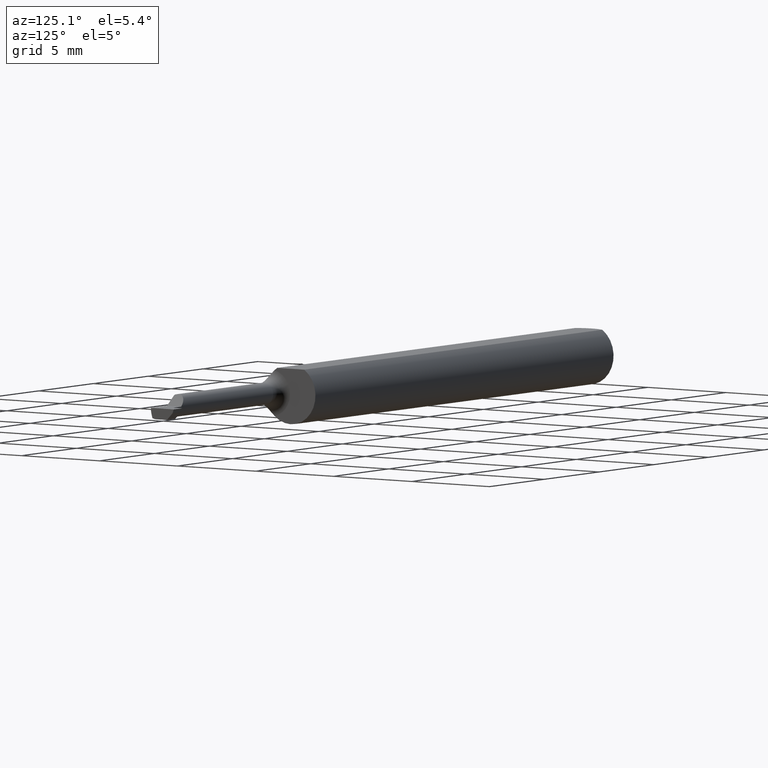
[diagram: clean part render]
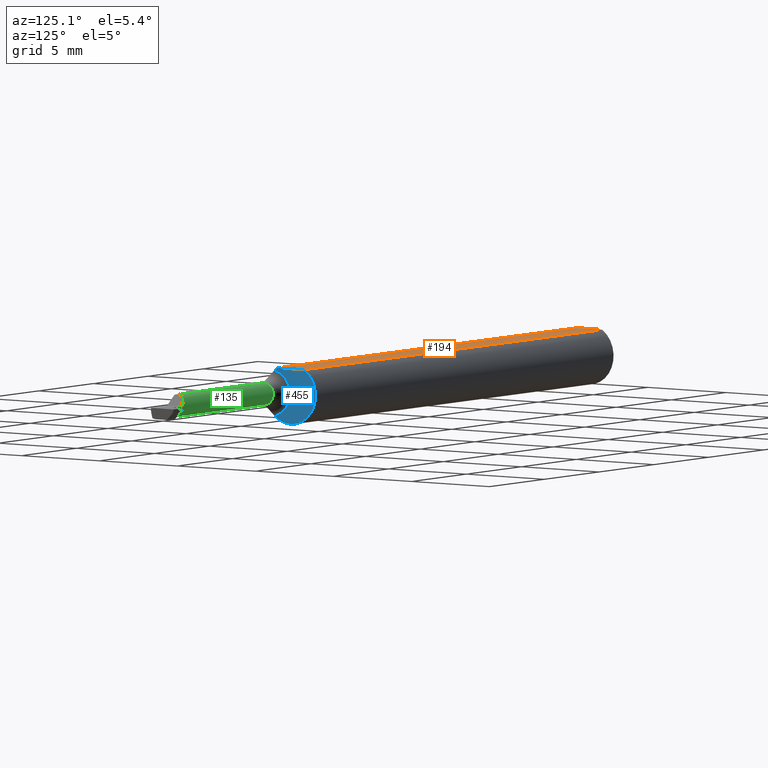
[diagram: same view with three faces highlighted in distinct colors, each labeled with its STEP entity id]
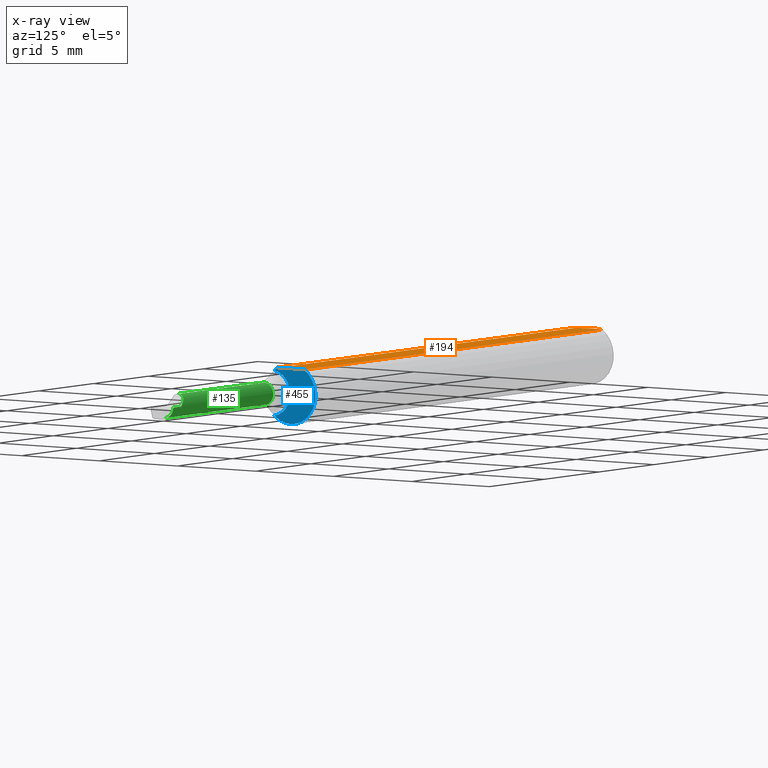
[diagram: x-ray of the same camera — body ghosted, the three highlighted faces saturated]
A machine part, auxiliary view with three faces highlighted in distinct colors.
The next image is the same camera in x-ray (body ghosted, the three faces saturated) — at least one of them is partly hidden behind the body in this view.
Their STEP definitions:

[orange] entity #194 — the highlighted planar face has unit normal (0, -0, 1).
#17 = CARTESIAN_POINT ( 'NONE',  ( 0.01499999999999999771, 0.03391164991562633374, 0.05250000000000000500 ) ) ;
#54 = DIRECTION ( 'NONE',  ( -0.000000000000000000, 1.000000000000000000, 0.000000000000000000 ) ) ;
#55 = CARTESIAN_POINT ( 'NONE',  ( 0.006056885874551373727, -0.01188654981375985957, 0.05250000000000001193 ) ) ;
#63 = B_SPLINE_CURVE_WITH_KNOTS ( 'NONE', 3,
 ( #17, #134, #561, #303, #461, #131 ),
 .UNSPECIFIED., .F., .F.,
 ( 4, 2, 4 ),
 ( 0.0009797930073890425730, 0.001428868798926340253, 0.001877944590463637717 ),
 .UNSPECIFIED. ) ;
#69 = CARTESIAN_POINT ( 'NONE',  ( 0.01216049014016022493, -0.02867836381244416935, 0.05250000000000000500 ) ) ;
#87 = VECTOR ( 'NONE', #698, 39.37007874015748143 ) ;
#95 = VECTOR ( 'NONE', #299, 39.37007874015748143 ) ;
#112 = EDGE_CURVE ( 'NONE', #253, #645, #365, .T. ) ;
#113 = CARTESIAN_POINT ( 'NONE',  ( 0.01499999999999999771, 0.03391164991562633374, 0.05250000000000000500 ) ) ;
#117 = VERTEX_POINT ( 'NONE', #615 ) ;
#126 = CARTESIAN_POINT ( 'NONE',  ( 0.000000000000000000, 0.03391164991562636150, 0.05249999999999998418 ) ) ;
#131 = CARTESIAN_POINT ( 'NONE',  ( 0.004999999999989314207, 8.235553591830799656E-16, 0.05250000000000000500 ) ) ;
#134 = CARTESIAN_POINT ( 'NONE',  ( 0.01218419045468773464, 0.02872204407162096823, 0.05250000000000001193 ) ) ;
#139 = CARTESIAN_POINT ( 'NONE',  ( 1.084999999999999964, 0.03391164991562636150, 0.05250000000000000500 ) ) ;
#194 = ADVANCED_FACE ( 'NONE', ( #342 ), #356, .T. ) ;
#228 = VERTEX_POINT ( 'NONE', #139 ) ;
#231 = CARTESIAN_POINT ( 'NONE',  ( 1.084999999999999964, -0.06250000000000001388, 0.05250000000000000500 ) ) ;
#233 = ORIENTED_EDGE ( 'NONE', *, *, #441, .T. ) ;
#252 = EDGE_CURVE ( 'NONE', #645, #117, #562, .T. ) ;
#253 = VERTEX_POINT ( 'NONE', #526 ) ;
#299 = DIRECTION ( 'NONE',  ( -1.000000000000000000, -0.000000000000000000, -0.000000000000000000 ) ) ;
#300 = CARTESIAN_POINT ( 'NONE',  ( 0.009676924495017957123, -0.02328413057436891712, 0.05250000000000001193 ) ) ;
#303 = CARTESIAN_POINT ( 'NONE',  ( 0.006063917085846147297, 0.01190810954070469288, 0.05250000000000001887 ) ) ;
#318 = ORIENTED_EDGE ( 'NONE', *, *, #112, .T. ) ;
#342 = FACE_OUTER_BOUND ( 'NONE', #699, .T. ) ;
#356 = PLANE ( 'NONE',  #452 ) ;
#365 = B_SPLINE_CURVE_WITH_KNOTS ( 'NONE', 3,
 ( #596, #384, #55, #300, #69, #515 ),
 .UNSPECIFIED., .F., .F.,
 ( 4, 2, 4 ),
 ( 0.001877944590463637717, 0.002327931134338583757, 0.002777917678213529581 ),
 .UNSPECIFIED. ) ;
#383 = VECTOR ( 'NONE', #54, 39.37007874015748143 ) ;
#384 = CARTESIAN_POINT ( 'NONE',  ( 0.004999999999998634009, -0.005964525438754507587, 0.05250000000000000500 ) ) ;
#391 = ORIENTED_EDGE ( 'NONE', *, *, #252, .T. ) ;
#399 = DIRECTION ( 'NONE',  ( 1.000000000000000000, 0.000000000000000000, -0.000000000000000000 ) ) ;
#423 = VERTEX_POINT ( 'NONE', #113 ) ;
#441 = EDGE_CURVE ( 'NONE', #117, #228, #546, .T. ) ;
#452 = AXIS2_PLACEMENT_3D ( 'NONE', #573, #506, #399 ) ;
#461 = CARTESIAN_POINT ( 'NONE',  ( 0.004999999999999040802, 0.005952453510029875015, 0.05249999999999999806 ) ) ;
#506 = DIRECTION ( 'NONE',  ( 0.000000000000000000, -0.000000000000000000, 1.000000000000000000 ) ) ;
#515 = CARTESIAN_POINT ( 'NONE',  ( 0.01499999999999999944, -0.03391164991562636150, 0.05249999999999998418 ) ) ;
#521 = ORIENTED_EDGE ( 'NONE', *, *, #642, .T. ) ;
#526 = CARTESIAN_POINT ( 'NONE',  ( 0.004999999999989314207, 8.235553591830799656E-16, 0.05250000000000000500 ) ) ;
#546 = LINE ( 'NONE', #231, #383 ) ;
#561 = CARTESIAN_POINT ( 'NONE',  ( 0.009668628632509970039, 0.02325858892916567860, 0.05250000000000001193 ) ) ;
#562 = LINE ( 'NONE', #566, #87 ) ;
#566 = CARTESIAN_POINT ( 'NONE',  ( 0.000000000000000000, -0.03391164991562636150, 0.05249999999999998418 ) ) ;
#572 = EDGE_CURVE ( 'NONE', #423, #253, #63, .T. ) ;
#573 = CARTESIAN_POINT ( 'NONE',  ( 1.500000000000000222, -0.06250000000000001388, 0.05250000000000000500 ) ) ;
#593 = ORIENTED_EDGE ( 'NONE', *, *, #572, .T. ) ;
#596 = CARTESIAN_POINT ( 'NONE',  ( 0.004999999999989314207, 8.235553591830799656E-16, 0.05250000000000000500 ) ) ;
#610 = LINE ( 'NONE', #126, #95 ) ;
#615 = CARTESIAN_POINT ( 'NONE',  ( 1.084999999999999964, -0.03391164991562636150, 0.05250000000000000500 ) ) ;
#642 = EDGE_CURVE ( 'NONE', #228, #423, #610, .T. ) ;
#645 = VERTEX_POINT ( 'NONE', #676 ) ;
#676 = CARTESIAN_POINT ( 'NONE',  ( 0.01499999999999999944, -0.03391164991562636150, 0.05249999999999998418 ) ) ;
#698 = DIRECTION ( 'NONE',  ( 1.000000000000000000, 0.000000000000000000, 0.000000000000000000 ) ) ;
#699 = EDGE_LOOP ( 'NONE', ( #391, #233, #521, #593, #318 ) ) ;

[blue] entity #455 — the highlighted planar face has unit normal (1, 0, 0).
#25 = CARTESIAN_POINT ( 'NONE',  ( 1.084999999999999964, 0.000000000000000000, 0.000000000000000000 ) ) ;
#28 = VERTEX_POINT ( 'NONE', #52 ) ;
#52 = CARTESIAN_POINT ( 'NONE',  ( 1.084999999999999964, -0.04093434343434342731, 0.04722954083620996973 ) ) ;
#54 = DIRECTION ( 'NONE',  ( -0.000000000000000000, 1.000000000000000000, 0.000000000000000000 ) ) ;
#62 = CARTESIAN_POINT ( 'NONE',  ( 1.084999999999999964, 0.000000000000000000, 0.000000000000000000 ) ) ;
#76 = EDGE_CURVE ( 'NONE', #435, #228, #102, .T. ) ;
#102 = CIRCLE ( 'NONE', #602, 0.06250000000000000000 ) ;
#117 = VERTEX_POINT ( 'NONE', #615 ) ;
#129 = AXIS2_PLACEMENT_3D ( 'NONE', #25, #250, #392 ) ;
#139 = CARTESIAN_POINT ( 'NONE',  ( 1.084999999999999964, 0.03391164991562636150, 0.05250000000000000500 ) ) ;
#181 = DIRECTION ( 'NONE',  ( 0.000000000000000000, 0.000000000000000000, 1.000000000000000000 ) ) ;
#200 = AXIS2_PLACEMENT_3D ( 'NONE', #286, #492, #539 ) ;
#212 = EDGE_CURVE ( 'NONE', #28, #435, #575, .T. ) ;
#228 = VERTEX_POINT ( 'NONE', #139 ) ;
#231 = CARTESIAN_POINT ( 'NONE',  ( 1.084999999999999964, -0.06250000000000001388, 0.05250000000000000500 ) ) ;
#250 = DIRECTION ( 'NONE',  ( 1.000000000000000000, 0.000000000000000000, 0.000000000000000000 ) ) ;
#265 = ORIENTED_EDGE ( 'NONE', *, *, #441, .F. ) ;
#279 = FACE_OUTER_BOUND ( 'NONE', #371, .T. ) ;
#286 = CARTESIAN_POINT ( 'NONE',  ( 1.084999999999999964, 0.07349999999999998201, 0.000000000000000000 ) ) ;
#322 = CARTESIAN_POINT ( 'NONE',  ( 1.084999999999999964, -0.04093434343434342731, -0.04722954083620996973 ) ) ;
#335 = CIRCLE ( 'NONE', #129, 0.06250000000000000000 ) ;
#371 = EDGE_LOOP ( 'NONE', ( #497, #265, #682, #674 ) ) ;
#383 = VECTOR ( 'NONE', #54, 39.37007874015748143 ) ;
#392 = DIRECTION ( 'NONE',  ( 0.000000000000000000, 0.000000000000000000, -1.000000000000000000 ) ) ;
#394 = AXIS2_PLACEMENT_3D ( 'NONE', #412, #670, #181 ) ;
#412 = CARTESIAN_POINT ( 'NONE',  ( 1.084999999999999964, -0.04950000000000000233, 0.000000000000000000 ) ) ;
#435 = VERTEX_POINT ( 'NONE', #322 ) ;
#441 = EDGE_CURVE ( 'NONE', #117, #228, #546, .T. ) ;
#455 = ADVANCED_FACE ( 'NONE', ( #279 ), #595, .T. ) ;
#492 = DIRECTION ( 'NONE',  ( 1.000000000000000000, 0.000000000000000000, 0.000000000000000000 ) ) ;
#497 = ORIENTED_EDGE ( 'NONE', *, *, #76, .T. ) ;
#539 = DIRECTION ( 'NONE',  ( 0.000000000000000000, 0.000000000000000000, -1.000000000000000000 ) ) ;
#546 = LINE ( 'NONE', #231, #383 ) ;
#575 = CIRCLE ( 'NONE', #394, 0.04800000000000000794 ) ;
#595 = PLANE ( 'NONE',  #200 ) ;
#602 = AXIS2_PLACEMENT_3D ( 'NONE', #62, #663, #660 ) ;
#615 = CARTESIAN_POINT ( 'NONE',  ( 1.084999999999999964, -0.03391164991562636150, 0.05250000000000000500 ) ) ;
#660 = DIRECTION ( 'NONE',  ( 0.000000000000000000, 0.000000000000000000, -1.000000000000000000 ) ) ;
#663 = DIRECTION ( 'NONE',  ( 1.000000000000000000, 0.000000000000000000, 0.000000000000000000 ) ) ;
#670 = DIRECTION ( 'NONE',  ( -1.000000000000000000, -0.000000000000000000, -0.000000000000000000 ) ) ;
#674 = ORIENTED_EDGE ( 'NONE', *, *, #212, .T. ) ;
#678 = EDGE_CURVE ( 'NONE', #117, #28, #335, .T. ) ;
#682 = ORIENTED_EDGE ( 'NONE', *, *, #678, .T. ) ;

[green] entity #135 — the highlighted cylindrical surface (edge-blend (fillet) strip) has radius 0.5842 mm, axis along (-1, -0, -0).
#22 = EDGE_CURVE ( 'NONE', #193, #548, #637, .T. ) ;
#30 = CARTESIAN_POINT ( 'NONE',  ( 1.110000000000000098, -0.04950000000000000233, 0.02299999999999999961 ) ) ;
#58 = CARTESIAN_POINT ( 'NONE',  ( 1.084999999999999964, -0.04950000000000000233, -0.02299999999999999961 ) ) ;
#71 = ORIENTED_EDGE ( 'NONE', *, *, #282, .F. ) ;
#72 = CARTESIAN_POINT ( 'NONE',  ( 1.426526911934581365, -0.02649999999999999925, 0.01347308806541881732 ) ) ;
#81 = DIRECTION ( 'NONE',  ( -1.000000000000000000, -0.000000000000000000, -0.000000000000000000 ) ) ;
#84 = EDGE_CURVE ( 'NONE', #193, #524, #334, .T. ) ;
#122 = DIRECTION ( 'NONE',  ( 0.000000000000000000, 0.000000000000000000, 1.000000000000000000 ) ) ;
#135 = ADVANCED_FACE ( 'NONE', ( #520 ), #677, .T. ) ;
#169 = CARTESIAN_POINT ( 'NONE',  ( 1.440000000000000169, -0.02650000000000000966, 7.469896857675718968E-18 ) ) ;
#188 = LINE ( 'NONE', #355, #436 ) ;
#193 = VERTEX_POINT ( 'NONE', #291 ) ;
#201 = DIRECTION ( 'NONE',  ( -1.000000000000000000, -0.000000000000000000, -0.000000000000000000 ) ) ;
#203 = AXIS2_PLACEMENT_3D ( 'NONE', #681, #459, #122 ) ;
#234 = EDGE_CURVE ( 'NONE', #430, #548, #666, .T. ) ;
#261 = VERTEX_POINT ( 'NONE', #30 ) ;
#264 = CARTESIAN_POINT ( 'NONE',  ( 1.110000000000000098, -0.04950000000000000233, 0.000000000000000000 ) ) ;
#274 = CARTESIAN_POINT ( 'NONE',  ( 1.110000000000000098, -0.04949999999999999539, -0.02299999999999999961 ) ) ;
#276 = VECTOR ( 'NONE', #504, 39.37007874015748143 ) ;
#280 = ORIENTED_EDGE ( 'NONE', *, *, #84, .T. ) ;
#282 = EDGE_CURVE ( 'NONE', #261, #524, #488, .T. ) ;
#285 = DIRECTION ( 'NONE',  ( -1.000000000000000000, -0.000000000000000000, -0.000000000000000000 ) ) ;
#291 = CARTESIAN_POINT ( 'NONE',  ( 1.469604396811383440, -0.04950000000000000233, -0.02299999999999999961 ) ) ;
#313 = ORIENTED_EDGE ( 'NONE', *, *, #234, .T. ) ;
#334 = LINE ( 'NONE', #58, #446 ) ;
#355 = CARTESIAN_POINT ( 'NONE',  ( 1.084999999999999964, -0.04950000000000000233, 0.02299999999999999961 ) ) ;
#358 = CARTESIAN_POINT ( 'NONE',  ( 1.084999999999999964, -0.02650000000000000272, 5.166678659892382429E-17 ) ) ;
#390 = CARTESIAN_POINT ( 'NONE',  ( 1.469604969856262988, -0.03602691193458118502, -0.02299999999999999614 ) ) ;
#400 = EDGE_LOOP ( 'NONE', ( #571, #280, #71, #560, #440, #313 ) ) ;
#430 = VERTEX_POINT ( 'NONE', #169 ) ;
#436 = VECTOR ( 'NONE', #81, 39.37007874015748143 ) ;
#440 = ORIENTED_EDGE ( 'NONE', *, *, #609, .T. ) ;
#444 = CARTESIAN_POINT ( 'NONE',  ( 1.468802687828234754, -0.02650000000000001660, 1.942005867998327689E-18 ) ) ;
#446 = VECTOR ( 'NONE', #285, 39.37007874015748143 ) ;
#458 = CARTESIAN_POINT ( 'NONE',  ( 1.440000000000000169, -0.02650000000000000966, 7.469896857675718968E-18 ) ) ;
#459 = DIRECTION ( 'NONE',  ( -1.000000000000000000, -0.000000000000000000, -0.000000000000000000 ) ) ;
#484 = VERTEX_POINT ( 'NONE', #498 ) ;
#488 = CIRCLE ( 'NONE', #691, 0.02299999999999999961 ) ;
#498 = CARTESIAN_POINT ( 'NONE',  ( 1.417000000000000259, -0.04950000000000000233, 0.02299999999999999961 ) ) ;
#500 = CARTESIAN_POINT ( 'NONE',  ( 1.469604396811383440, -0.04950000000000000233, -0.02299999999999999961 ) ) ;
#504 = DIRECTION ( 'NONE',  ( 1.000000000000000000, 0.000000000000000000, 0.000000000000000000 ) ) ;
#516 =( BOUNDED_CURVE ( )  B_SPLINE_CURVE ( 3, ( #669, #621, #72, #458 ),
 .UNSPECIFIED., .F., .T. ) 
 B_SPLINE_CURVE_WITH_KNOTS ( ( 4, 4 ),
 ( 0.000000000000000000, 1.570796326794896558 ),
 .UNSPECIFIED. ) 
 CURVE ( )  GEOMETRIC_REPRESENTATION_ITEM ( )  RATIONAL_B_SPLINE_CURVE ( ( 1.000000000000000000, 0.8047378541243649375, 0.8047378541243649375, 1.000000000000000000 ) ) 
 REPRESENTATION_ITEM ( '' )  );
#520 = FACE_OUTER_BOUND ( 'NONE', #400, .T. ) ;
#524 = VERTEX_POINT ( 'NONE', #274 ) ;
#548 = VERTEX_POINT ( 'NONE', #651 ) ;
#560 = ORIENTED_EDGE ( 'NONE', *, *, #655, .F. ) ;
#571 = ORIENTED_EDGE ( 'NONE', *, *, #22, .F. ) ;
#606 = CARTESIAN_POINT ( 'NONE',  ( 1.469272891122366254, -0.02649999999999999925, -0.01347308806541881558 ) ) ;
#609 = EDGE_CURVE ( 'NONE', #484, #430, #516, .T. ) ;
#621 = CARTESIAN_POINT ( 'NONE',  ( 1.417000000000000259, -0.03602691193458118502, 0.02299999999999999961 ) ) ;
#637 =( BOUNDED_CURVE ( )  B_SPLINE_CURVE ( 3, ( #500, #390, #606, #444 ),
 .UNSPECIFIED., .F., .F. ) 
 B_SPLINE_CURVE_WITH_KNOTS ( ( 4, 4 ),
 ( 3.140373936913448016, 4.711170263708344130 ),
 .UNSPECIFIED. ) 
 CURVE ( )  GEOMETRIC_REPRESENTATION_ITEM ( )  RATIONAL_B_SPLINE_CURVE ( ( 1.000000000000000000, 0.8047378541243650485, 0.8047378541243650485, 1.000000000000000000 ) ) 
 REPRESENTATION_ITEM ( '' )  );
#646 = DIRECTION ( 'NONE',  ( 0.000000000000000000, 0.000000000000000000, 1.000000000000000000 ) ) ;
#651 = CARTESIAN_POINT ( 'NONE',  ( 1.468802687828234754, -0.02650000000000001660, 1.942005867998327689E-18 ) ) ;
#655 = EDGE_CURVE ( 'NONE', #484, #261, #188, .T. ) ;
#666 = LINE ( 'NONE', #358, #276 ) ;
#669 = CARTESIAN_POINT ( 'NONE',  ( 1.417000000000000259, -0.04950000000000000233, 0.02299999999999999961 ) ) ;
#677 = CYLINDRICAL_SURFACE ( 'NONE', #203, 0.02299999999999999961 ) ;
#681 = CARTESIAN_POINT ( 'NONE',  ( 1.084999999999999964, -0.04950000000000000233, 0.000000000000000000 ) ) ;
#691 = AXIS2_PLACEMENT_3D ( 'NONE', #264, #201, #646 ) ;